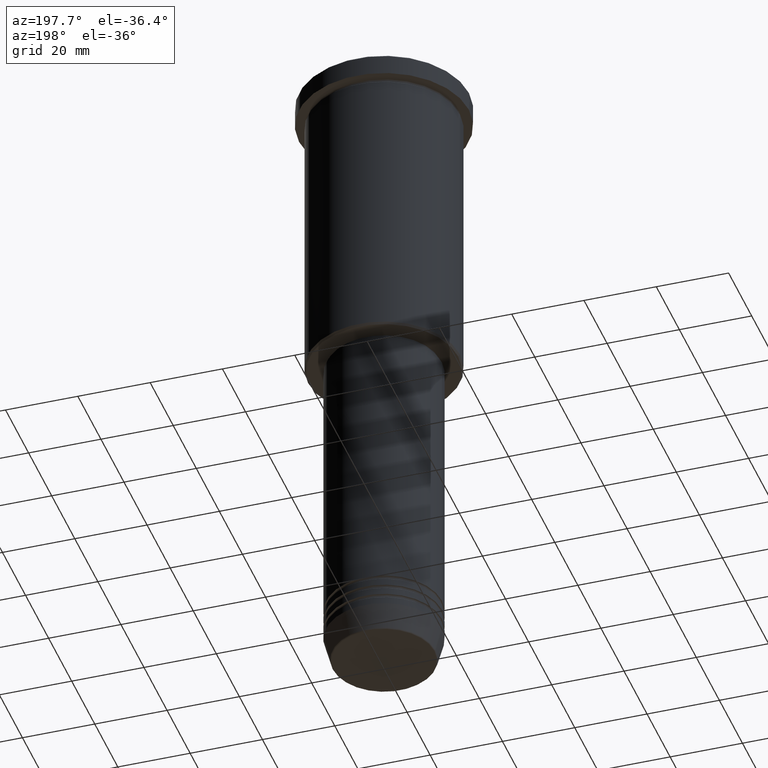
[diagram: clean part render]
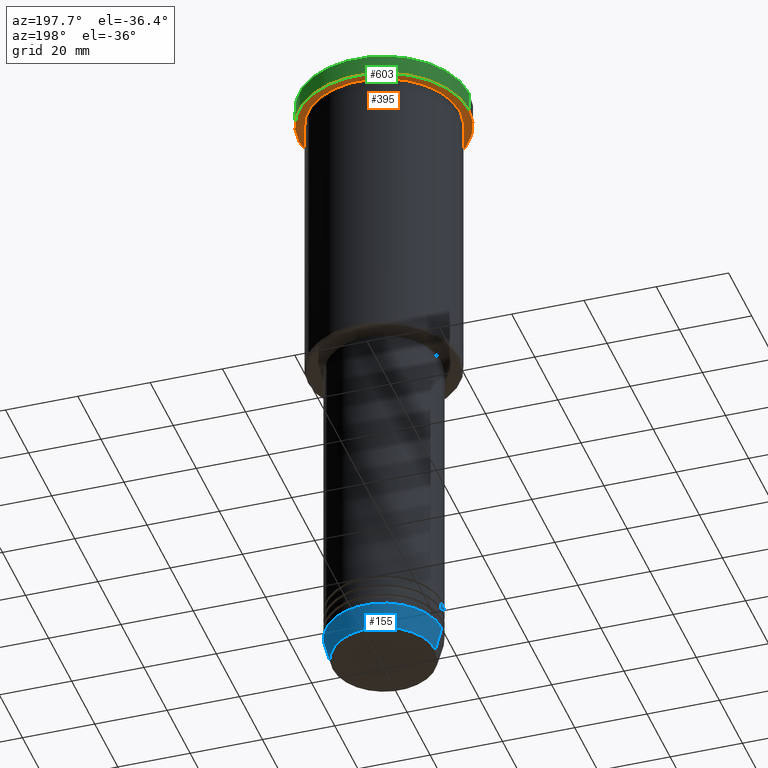
[diagram: same view with three faces highlighted in distinct colors, each labeled with its STEP entity id]
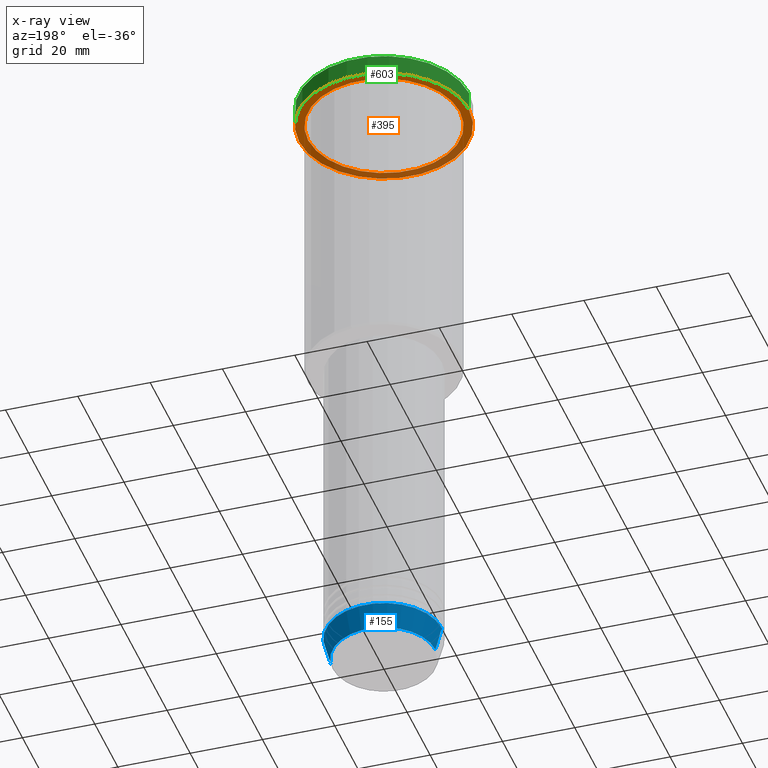
[diagram: x-ray of the same camera — body ghosted, the three highlighted faces saturated]
A machine part, auxiliary view with three faces highlighted in distinct colors.
The next image is the same camera in x-ray (body ghosted, the three faces saturated) — at least one of them is partly hidden behind the body in this view.
Their STEP definitions:

[orange] entity #395 — the highlighted planar face has unit normal (0, 0, -1).
#2 = PLANE ( 'NONE',  #997 ) ;
#21 = CARTESIAN_POINT ( 'NONE',  ( 0.000000000000000000, 0.000000000000000000, -5.999999999999994671 ) ) ;
#28 = CARTESIAN_POINT ( 'NONE',  ( -21.00000000000000000, 0.000000000000000000, -5.999999999999994671 ) ) ;
#55 = ORIENTED_EDGE ( 'NONE', *, *, #1139, .F. ) ;
#67 = DIRECTION ( 'NONE',  ( -0.000000000000000000, -0.000000000000000000, 1.000000000000000000 ) ) ;
#68 = ORIENTED_EDGE ( 'NONE', *, *, #770, .F. ) ;
#84 = DIRECTION ( 'NONE',  ( -0.000000000000000000, -0.000000000000000000, 1.000000000000000000 ) ) ;
#157 = VERTEX_POINT ( 'NONE', #777 ) ;
#179 = DIRECTION ( 'NONE',  ( 0.000000000000000000, 0.000000000000000000, -1.000000000000000000 ) ) ;
#203 = DIRECTION ( 'NONE',  ( -0.000000000000000000, -0.000000000000000000, 1.000000000000000000 ) ) ;
#220 = ORIENTED_EDGE ( 'NONE', *, *, #556, .T. ) ;
#255 = DIRECTION ( 'NONE',  ( -0.000000000000000000, -0.000000000000000000, 1.000000000000000000 ) ) ;
#262 = ORIENTED_EDGE ( 'NONE', *, *, #1175, .T. ) ;
#343 = CIRCLE ( 'NONE', #1021, 21.00000000000000000 ) ;
#367 = CIRCLE ( 'NONE', #501, 23.50000000000000000 ) ;
#395 = ADVANCED_FACE ( 'NONE', ( #945, #907 ), #2, .T. ) ;
#437 = AXIS2_PLACEMENT_3D ( 'NONE', #846, #203, #1032 ) ;
#501 = AXIS2_PLACEMENT_3D ( 'NONE', #630, #255, #823 ) ;
#537 = CARTESIAN_POINT ( 'NONE',  ( -23.50000000000000000, 2.877919977996280320E-15, -5.999999999999994671 ) ) ;
#556 = EDGE_CURVE ( 'NONE', #824, #1087, #343, .T. ) ;
#579 = CIRCLE ( 'NONE', #437, 23.50000000000000000 ) ;
#630 = CARTESIAN_POINT ( 'NONE',  ( 0.000000000000000000, 0.000000000000000000, -5.999999999999994671 ) ) ;
#638 = CARTESIAN_POINT ( 'NONE',  ( 0.000000000000000000, 23.50000000000000000, -5.999999999999994671 ) ) ;
#770 = EDGE_CURVE ( 'NONE', #157, #1094, #579, .T. ) ;
#777 = CARTESIAN_POINT ( 'NONE',  ( 23.50000000000000000, 0.000000000000000000, -5.999999999999994671 ) ) ;
#823 = DIRECTION ( 'NONE',  ( 1.000000000000000000, 0.000000000000000000, 0.000000000000000000 ) ) ;
#824 = VERTEX_POINT ( 'NONE', #28 ) ;
#846 = CARTESIAN_POINT ( 'NONE',  ( 0.000000000000000000, 0.000000000000000000, -5.999999999999994671 ) ) ;
#852 = EDGE_LOOP ( 'NONE', ( #68, #55 ) ) ;
#886 = CARTESIAN_POINT ( 'NONE',  ( 0.000000000000000000, 0.000000000000000000, -5.999999999999994671 ) ) ;
#907 = FACE_OUTER_BOUND ( 'NONE', #852, .T. ) ;
#911 = CARTESIAN_POINT ( 'NONE',  ( 21.00000000000000000, 2.571758278209441661E-15, -5.999999999999994671 ) ) ;
#912 = DIRECTION ( 'NONE',  ( -1.000000000000000000, 0.000000000000000000, -0.000000000000000000 ) ) ;
#945 = FACE_BOUND ( 'NONE', #1153, .T. ) ;
#997 = AXIS2_PLACEMENT_3D ( 'NONE', #638, #179, #912 ) ;
#1002 = CIRCLE ( 'NONE', #1138, 21.00000000000000000 ) ;
#1004 = DIRECTION ( 'NONE',  ( -1.000000000000000000, 0.000000000000000000, 0.000000000000000000 ) ) ;
#1021 = AXIS2_PLACEMENT_3D ( 'NONE', #21, #84, #1004 ) ;
#1032 = DIRECTION ( 'NONE',  ( 1.000000000000000000, 0.000000000000000000, 0.000000000000000000 ) ) ;
#1087 = VERTEX_POINT ( 'NONE', #911 ) ;
#1094 = VERTEX_POINT ( 'NONE', #537 ) ;
#1138 = AXIS2_PLACEMENT_3D ( 'NONE', #886, #67, #1169 ) ;
#1139 = EDGE_CURVE ( 'NONE', #1094, #157, #367, .T. ) ;
#1153 = EDGE_LOOP ( 'NONE', ( #220, #262 ) ) ;
#1169 = DIRECTION ( 'NONE',  ( -1.000000000000000000, 0.000000000000000000, 0.000000000000000000 ) ) ;
#1175 = EDGE_CURVE ( 'NONE', #1087, #824, #1002, .T. ) ;

[blue] entity #155 — the highlighted conical surface has half-angle 15 deg.
#42 = DIRECTION ( 'NONE',  ( -0.000000000000000000, -0.000000000000000000, 1.000000000000000000 ) ) ;
#52 = ORIENTED_EDGE ( 'NONE', *, *, #1031, .T. ) ;
#150 = FACE_OUTER_BOUND ( 'NONE', #609, .T. ) ;
#155 = ADVANCED_FACE ( 'NONE', ( #150 ), #828, .T. ) ;
#182 = DIRECTION ( 'NONE',  ( 1.000000000000000000, 0.000000000000000000, 0.000000000000000000 ) ) ;
#266 = CARTESIAN_POINT ( 'NONE',  ( 0.000000000000000000, 0.000000000000000000, -174.0000000000000284 ) ) ;
#355 = ORIENTED_EDGE ( 'NONE', *, *, #781, .F. ) ;
#389 = AXIS2_PLACEMENT_3D ( 'NONE', #588, #42, #398 ) ;
#392 = LINE ( 'NONE', #758, #882 ) ;
#398 = DIRECTION ( 'NONE',  ( 1.000000000000000000, 0.000000000000000000, 0.000000000000000000 ) ) ;
#422 = EDGE_CURVE ( 'NONE', #1059, #924, #636, .T. ) ;
#424 = DIRECTION ( 'NONE',  ( 1.000000000000000000, 0.000000000000000000, 0.000000000000000000 ) ) ;
#492 = CARTESIAN_POINT ( 'NONE',  ( -16.00000000000000000, 1.959434878635765131E-15, -174.0000000000000284 ) ) ;
#493 = ORIENTED_EDGE ( 'NONE', *, *, #752, .T. ) ;
#499 = VECTOR ( 'NONE', #710, 1000.000000000000000 ) ;
#520 = CARTESIAN_POINT ( 'NONE',  ( 0.000000000000000000, 0.000000000000000000, -174.0000000000000284 ) ) ;
#588 = CARTESIAN_POINT ( 'NONE',  ( 0.000000000000000000, 0.000000000000000000, -180.6294095225512422 ) ) ;
#609 = EDGE_LOOP ( 'NONE', ( #52, #493, #1034, #355 ) ) ;
#610 = CARTESIAN_POINT ( 'NONE',  ( 16.00000000000000000, 0.000000000000000000, -174.0000000000000284 ) ) ;
#636 = CIRCLE ( 'NONE', #686, 16.00000000000000000 ) ;
#663 = CARTESIAN_POINT ( 'NONE',  ( 14.22365507213720193, 0.000000000000000000, -180.6294095225512422 ) ) ;
#686 = AXIS2_PLACEMENT_3D ( 'NONE', #266, #990, #182 ) ;
#701 = LINE ( 'NONE', #797, #499 ) ;
#710 = DIRECTION ( 'NONE',  ( -0.2588190451025209615, 3.169619151431767406E-17, 0.9659258262890682012 ) ) ;
#739 = VERTEX_POINT ( 'NONE', #825 ) ;
#745 = DIRECTION ( 'NONE',  ( 0.2588190451025209615, 0.000000000000000000, 0.9659258262890682012 ) ) ;
#752 = EDGE_CURVE ( 'NONE', #739, #924, #701, .T. ) ;
#758 = CARTESIAN_POINT ( 'NONE',  ( 16.00000000000000000, 0.000000000000000000, -174.0000000000000284 ) ) ;
#781 = EDGE_CURVE ( 'NONE', #861, #1059, #392, .T. ) ;
#797 = CARTESIAN_POINT ( 'NONE',  ( -16.00000000000000000, 1.959434878635765131E-15, -174.0000000000000284 ) ) ;
#825 = CARTESIAN_POINT ( 'NONE',  ( -14.22365507213720193, 1.850665122131324126E-15, -180.6294095225512422 ) ) ;
#828 = CONICAL_SURFACE ( 'NONE', #1052, 16.00000000000000000, 0.2617993877991496299 ) ;
#861 = VERTEX_POINT ( 'NONE', #663 ) ;
#882 = VECTOR ( 'NONE', #745, 1000.000000000000000 ) ;
#924 = VERTEX_POINT ( 'NONE', #492 ) ;
#990 = DIRECTION ( 'NONE',  ( -0.000000000000000000, -0.000000000000000000, 1.000000000000000000 ) ) ;
#1031 = EDGE_CURVE ( 'NONE', #861, #739, #1177, .T. ) ;
#1034 = ORIENTED_EDGE ( 'NONE', *, *, #422, .F. ) ;
#1052 = AXIS2_PLACEMENT_3D ( 'NONE', #520, #1164, #424 ) ;
#1059 = VERTEX_POINT ( 'NONE', #610 ) ;
#1164 = DIRECTION ( 'NONE',  ( -0.000000000000000000, -0.000000000000000000, 1.000000000000000000 ) ) ;
#1177 = CIRCLE ( 'NONE', #389, 14.22365507213720193 ) ;

[green] entity #603 — the highlighted cylindrical surface (partial cylindrical patch) has radius 23.5 mm, axis along (-0, -0, 1).
#77 = VECTOR ( 'NONE', #626, 1000.000000000000000 ) ;
#148 = CIRCLE ( 'NONE', #344, 23.50000000000000000 ) ;
#153 = ORIENTED_EDGE ( 'NONE', *, *, #689, .F. ) ;
#154 = CARTESIAN_POINT ( 'NONE',  ( -23.50000000000000000, 2.877919977996280320E-15, 0.000000000000000000 ) ) ;
#157 = VERTEX_POINT ( 'NONE', #777 ) ;
#189 = DIRECTION ( 'NONE',  ( 1.000000000000000000, 0.000000000000000000, 0.000000000000000000 ) ) ;
#194 = LINE ( 'NONE', #154, #195 ) ;
#195 = VECTOR ( 'NONE', #259, 1000.000000000000000 ) ;
#203 = DIRECTION ( 'NONE',  ( -0.000000000000000000, -0.000000000000000000, 1.000000000000000000 ) ) ;
#204 = DIRECTION ( 'NONE',  ( 1.000000000000000000, 0.000000000000000000, 0.000000000000000000 ) ) ;
#252 = EDGE_CURVE ( 'NONE', #1094, #552, #194, .T. ) ;
#259 = DIRECTION ( 'NONE',  ( -0.000000000000000000, -0.000000000000000000, 1.000000000000000000 ) ) ;
#313 = ORIENTED_EDGE ( 'NONE', *, *, #770, .T. ) ;
#344 = AXIS2_PLACEMENT_3D ( 'NONE', #1033, #664, #204 ) ;
#374 = FACE_OUTER_BOUND ( 'NONE', #504, .T. ) ;
#396 = CARTESIAN_POINT ( 'NONE',  ( 0.000000000000000000, 0.000000000000000000, 0.000000000000000000 ) ) ;
#437 = AXIS2_PLACEMENT_3D ( 'NONE', #846, #203, #1032 ) ;
#471 = EDGE_CURVE ( 'NONE', #552, #859, #148, .T. ) ;
#504 = EDGE_LOOP ( 'NONE', ( #313, #999, #1067, #153 ) ) ;
#516 = AXIS2_PLACEMENT_3D ( 'NONE', #396, #1124, #189 ) ;
#537 = CARTESIAN_POINT ( 'NONE',  ( -23.50000000000000000, 2.877919977996280320E-15, -5.999999999999994671 ) ) ;
#545 = LINE ( 'NONE', #1095, #77 ) ;
#552 = VERTEX_POINT ( 'NONE', #981 ) ;
#576 = CARTESIAN_POINT ( 'NONE',  ( 23.50000000000000000, 0.000000000000000000, -0.5000000000000004441 ) ) ;
#579 = CIRCLE ( 'NONE', #437, 23.50000000000000000 ) ;
#603 = ADVANCED_FACE ( 'NONE', ( #374 ), #649, .T. ) ;
#626 = DIRECTION ( 'NONE',  ( -0.000000000000000000, -0.000000000000000000, 1.000000000000000000 ) ) ;
#649 = CYLINDRICAL_SURFACE ( 'NONE', #516, 23.50000000000000000 ) ;
#664 = DIRECTION ( 'NONE',  ( 0.000000000000000000, 0.000000000000000000, -1.000000000000000000 ) ) ;
#689 = EDGE_CURVE ( 'NONE', #157, #859, #545, .T. ) ;
#770 = EDGE_CURVE ( 'NONE', #157, #1094, #579, .T. ) ;
#777 = CARTESIAN_POINT ( 'NONE',  ( 23.50000000000000000, 0.000000000000000000, -5.999999999999994671 ) ) ;
#846 = CARTESIAN_POINT ( 'NONE',  ( 0.000000000000000000, 0.000000000000000000, -5.999999999999994671 ) ) ;
#859 = VERTEX_POINT ( 'NONE', #576 ) ;
#981 = CARTESIAN_POINT ( 'NONE',  ( -23.50000000000000000, 2.877919977996280320E-15, -0.5000000000000004441 ) ) ;
#999 = ORIENTED_EDGE ( 'NONE', *, *, #252, .T. ) ;
#1032 = DIRECTION ( 'NONE',  ( 1.000000000000000000, 0.000000000000000000, 0.000000000000000000 ) ) ;
#1033 = CARTESIAN_POINT ( 'NONE',  ( 0.000000000000000000, 0.000000000000000000, -0.5000000000000004441 ) ) ;
#1067 = ORIENTED_EDGE ( 'NONE', *, *, #471, .T. ) ;
#1094 = VERTEX_POINT ( 'NONE', #537 ) ;
#1095 = CARTESIAN_POINT ( 'NONE',  ( 23.50000000000000000, 0.000000000000000000, 0.000000000000000000 ) ) ;
#1124 = DIRECTION ( 'NONE',  ( -0.000000000000000000, -0.000000000000000000, 1.000000000000000000 ) ) ;